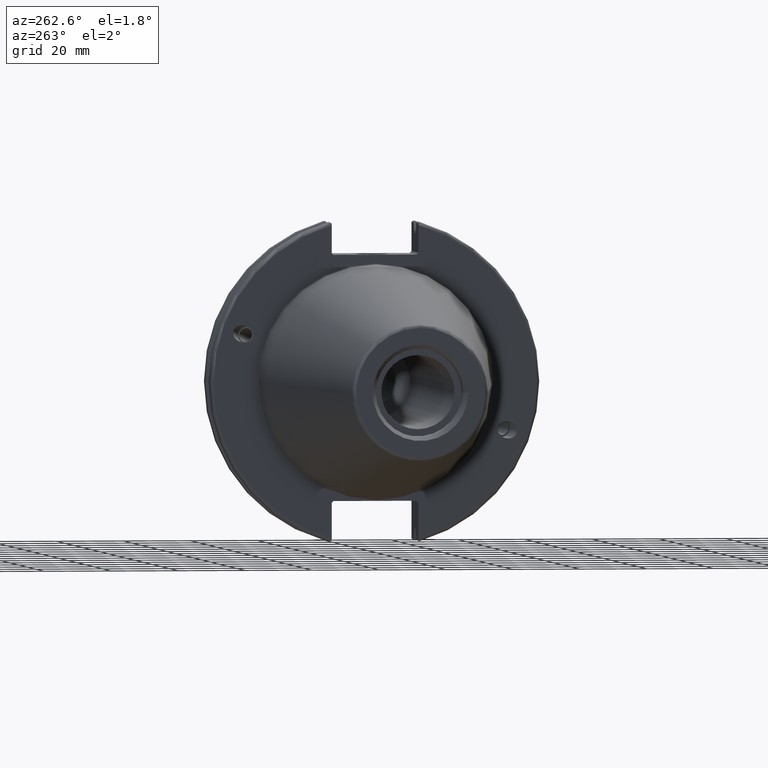
[diagram: clean part render]
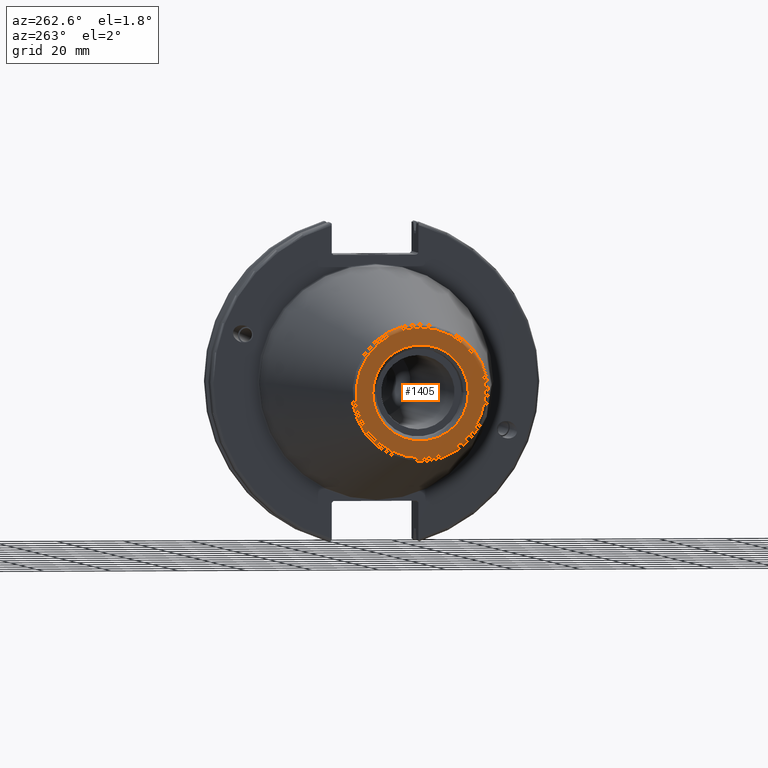
[diagram: same view with one face highlighted and labeled with its STEP entity id]
A machine part, auxiliary view. The second image highlights one B-rep face of the part: STEP entity #1405.
In plain terms, the highlighted planar face has unit normal (-1, 0, 0).
Its self-contained STEP definition (entity closure, byte-faithful):
#51=PLANE('',#1573);
#77=FACE_BOUND('',#254,.T.);
#163=FACE_OUTER_BOUND('',#253,.T.);
#253=EDGE_LOOP('',(#1206));
#254=EDGE_LOOP('',(#1207));
#347=CIRCLE('',#1572,19.2435889303637);
#348=CIRCLE('',#1574,14.2875);
#694=VERTEX_POINT('',#2684);
#695=VERTEX_POINT('',#2688);
#882=EDGE_CURVE('',#694,#694,#347,.T.);
#883=EDGE_CURVE('',#695,#695,#348,.T.);
#1206=ORIENTED_EDGE('',*,*,#882,.F.);
#1207=ORIENTED_EDGE('',*,*,#883,.T.);
#1405=ADVANCED_FACE('',(#163,#77),#51,.T.);
#1572=AXIS2_PLACEMENT_3D('',#2686,#1914,#1915);
#1573=AXIS2_PLACEMENT_3D('',#2687,#1916,#1917);
#1574=AXIS2_PLACEMENT_3D('',#2689,#1918,#1919);
#1914=DIRECTION('center_axis',(1.,0.,0.));
#1915=DIRECTION('ref_axis',(0.,-1.,1.83697019872103E-16));
#1916=DIRECTION('center_axis',(-1.,0.,0.));
#1917=DIRECTION('ref_axis',(0.,0.,1.));
#1918=DIRECTION('center_axis',(1.,0.,0.));
#1919=DIRECTION('ref_axis',(0.,0.,-1.));
#2684=CARTESIAN_POINT('',(-101.6,-2.35665995876774E-15,19.2435889303637));
#2686=CARTESIAN_POINT('Origin',(-101.6,0.,0.));
#2687=CARTESIAN_POINT('Origin',(-101.6,20.1083333333333,0.));
#2688=CARTESIAN_POINT('',(-101.6,-14.2875,-1.74971411428178E-15));
#2689=CARTESIAN_POINT('Origin',(-101.6,0.,0.));